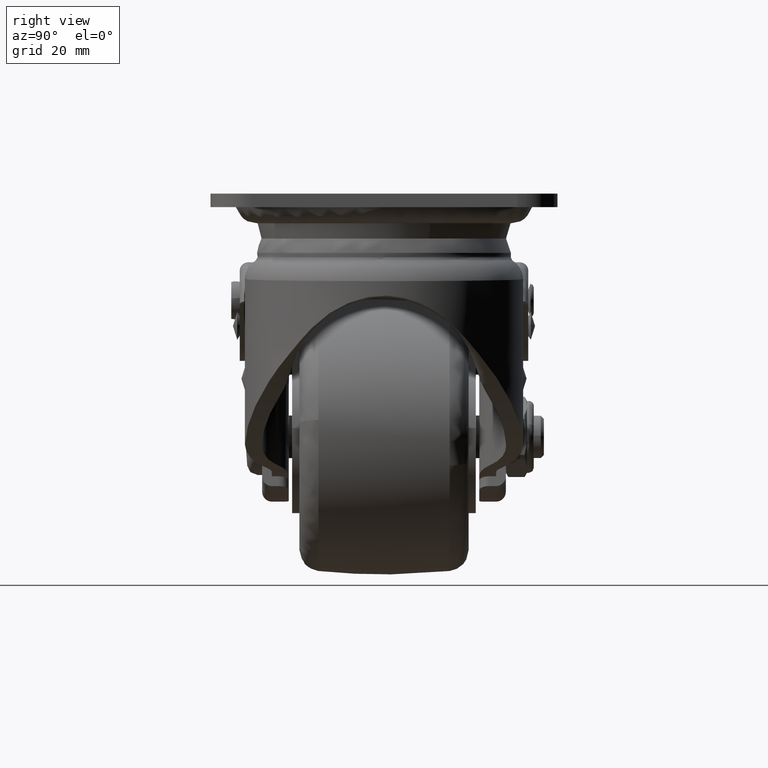
[diagram: clean part render]
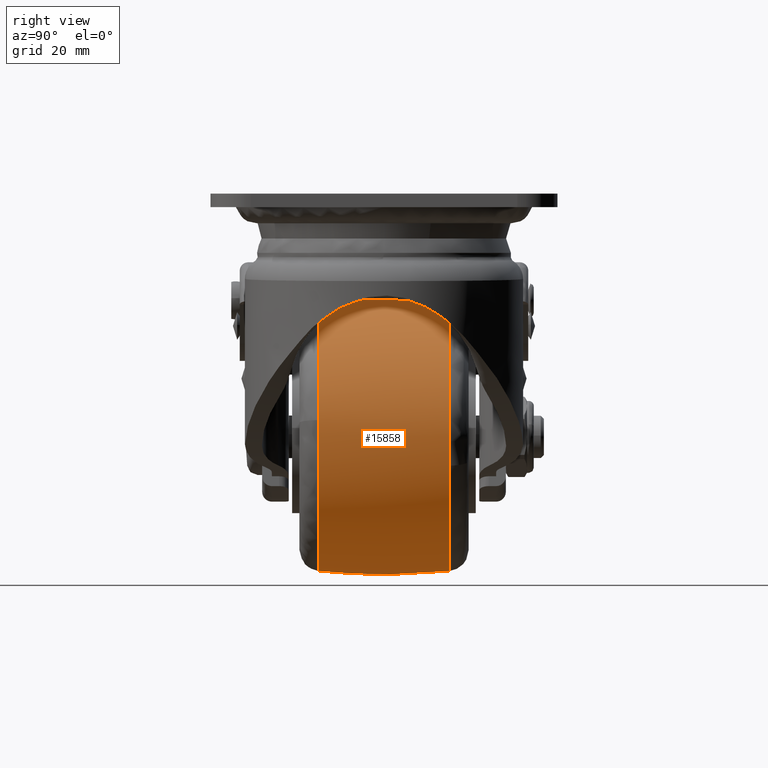
[diagram: same view with one face highlighted and labeled with its STEP entity id]
A machine part, right view. The second image highlights one B-rep face of the part: STEP entity #15858.
In plain terms, the highlighted face is a freeform B-spline surface patch.
Its self-contained STEP definition (entity closure, byte-faithful):
#15369=CARTESIAN_POINT('',(30.956984872587949,15.517244432105940,-64.300898144568194));
#15370=VERTEX_POINT('',#15369);
#15384=CARTESIAN_POINT('',(0.0,15.517246504561850,-89.195224658554821));
#15385=VERTEX_POINT('',#15384);
#15386=CARTESIAN_POINT('',(30.956984872587942,15.517244432105940,-64.300898144568194));
#15387=CARTESIAN_POINT('',(25.487985059781149,15.517246369822857,-89.195224380133894));
#15388=CARTESIAN_POINT('',(0.0,15.517246504561850,-89.195224658554821));
#15396=(BOUNDED_CURVE()B_SPLINE_CURVE(2,(#15386,#15387,#15388),.UNSPECIFIED.,.F.,.U.)B_SPLINE_CURVE_WITH_KNOTS((3,3),(0.286726881241594,0.500000000000000),.UNSPECIFIED.)CURVE()GEOMETRIC_REPRESENTATION_ITEM()RATIONAL_B_SPLINE_CURVE((0.926585902267039,0.750134999041867,1.0))REPRESENTATION_ITEM(''));
#15397=EDGE_CURVE('',#15370,#15385,#15396,.T.);
#15399=CARTESIAN_POINT('',(-31.483239876195750,15.517261947292409,-61.159613536615502));
#15400=VERTEX_POINT('',#15399);
#15414=CARTESIAN_POINT('',(-31.535192183460602,15.517259539980911,-54.319013286319269));
#15415=VERTEX_POINT('',#15414);
#15416=CARTESIAN_POINT('',(-31.483239876195750,15.517261947292416,-61.159613536615495));
#15417=CARTESIAN_POINT('',(-31.695222454983700,15.517261361219257,-59.335946286209172));
#15418=CARTESIAN_POINT('',(-31.695221846340811,15.517260711201500,-57.499999907075583));
#15419=CARTESIAN_POINT('',(-31.695221317734728,15.517260146661334,-55.905481248642118));
#15420=CARTESIAN_POINT('',(-31.535192183460602,15.517259539980916,-54.319013286319269));
#15428=(BOUNDED_CURVE()B_SPLINE_CURVE(2,(#15416,#15417,#15418,#15419,#15420),.UNSPECIFIED.,.F.,.U.)B_SPLINE_CURVE_WITH_KNOTS((3,2,3),(0.730000273836047,0.750000000000000,0.767423438940794),.UNSPECIFIED.)CURVE()GEOMETRIC_REPRESENTATION_ITEM()RATIONAL_B_SPLINE_CURVE((0.956886657167089,0.976568863313808,1.0,0.979587171543325,0.962019636448441))REPRESENTATION_ITEM(''));
#15429=EDGE_CURVE('',#15400,#15415,#15428,.T.);
#15524=CARTESIAN_POINT('',(0.0,15.517241913492301,-25.804774863944900));
#15525=VERTEX_POINT('',#15524);
#15526=CARTESIAN_POINT('',(-31.535192183460602,15.517259539980911,-54.319013286319269));
#15527=CARTESIAN_POINT('',(-28.658934756183783,15.517249848950010,-25.804774892733406));
#15528=CARTESIAN_POINT('',(0.0,15.517241913492301,-25.804774863944900));
#15536=(BOUNDED_CURVE()B_SPLINE_CURVE(2,(#15526,#15527,#15528),.UNSPECIFIED.,.F.,.U.)B_SPLINE_CURVE_WITH_KNOTS((3,3),(0.767423438940794,1.0),.UNSPECIFIED.)CURVE()GEOMETRIC_REPRESENTATION_ITEM()RATIONAL_B_SPLINE_CURVE((0.962019636448440,0.727519609643222,1.0))REPRESENTATION_ITEM(''));
#15537=EDGE_CURVE('',#15415,#15525,#15536,.T.);
#15539=CARTESIAN_POINT('',(0.0,15.517241913492301,-25.804774863944900));
#15540=CARTESIAN_POINT('',(31.695224116910239,15.517241805140783,-25.804774640050333));
#15541=CARTESIAN_POINT('',(31.695222849567049,15.517243965936570,-57.499999258934373));
#15542=CARTESIAN_POINT('',(31.695222711996930,15.517244200491000,-60.940516558995348));
#15543=CARTESIAN_POINT('',(30.956984872587942,15.517244432105940,-64.300898144568194));
#15551=(BOUNDED_CURVE()B_SPLINE_CURVE(2,(#15539,#15540,#15541,#15542,#15543),.UNSPECIFIED.,.F.,.U.)B_SPLINE_CURVE_WITH_KNOTS((3,2,3),(0.0,0.250000000000000,0.286726881241594),.UNSPECIFIED.)CURVE()GEOMETRIC_REPRESENTATION_ITEM()RATIONAL_B_SPLINE_CURVE((1.0,0.707106781186547,1.0,0.956971782144681,0.926585902267039))REPRESENTATION_ITEM(''));
#15552=EDGE_CURVE('',#15525,#15370,#15551,.T.);
#15593=CARTESIAN_POINT('',(11.223453774357321,-15.517241533323880,-87.141543519256601));
#15594=VERTEX_POINT('',#15593);
#15595=CARTESIAN_POINT('',(0.0,-15.517241598101750,-89.195221404938138));
#15596=VERTEX_POINT('',#15595);
#15597=CARTESIAN_POINT('',(11.223453774357321,-15.517241533323876,-87.141543519256601));
#15598=CARTESIAN_POINT('',(5.799618813265998,-15.517241598101759,-89.195221404938152));
#15599=CARTESIAN_POINT('',(0.0,-15.517241598101750,-89.195221404938138));
#15607=(BOUNDED_CURVE()B_SPLINE_CURVE(2,(#15597,#15598,#15599),.UNSPECIFIED.,.F.,.U.)B_SPLINE_CURVE_WITH_KNOTS((3,3),(0.439864364277846,0.500000000000000),.UNSPECIFIED.)CURVE()GEOMETRIC_REPRESENTATION_ITEM()RATIONAL_B_SPLINE_CURVE((0.892987462786412,0.929546720351780,1.0))REPRESENTATION_ITEM(''));
#15608=EDGE_CURVE('',#15594,#15596,#15607,.T.);
#15672=CARTESIAN_POINT('',(31.445293854822559,-15.517241488365061,-53.527535572264490));
#15673=VERTEX_POINT('',#15672);
#15687=CARTESIAN_POINT('',(0.0,-15.517241397116351,-25.804779828797962));
#15688=VERTEX_POINT('',#15687);
#15689=CARTESIAN_POINT('',(0.0,-15.517241397116351,-25.804779828797962));
#15690=CARTESIAN_POINT('',(27.943094916294701,-15.517241397116349,-25.804779828797955));
#15691=CARTESIAN_POINT('',(31.445293854822555,-15.517241488365064,-53.527535572264490));
#15699=(BOUNDED_CURVE()B_SPLINE_CURVE(2,(#15689,#15690,#15691),.UNSPECIFIED.,.F.,.U.)B_SPLINE_CURVE_WITH_KNOTS((3,3),(0.0,0.228321253634471),.UNSPECIFIED.)CURVE()GEOMETRIC_REPRESENTATION_ITEM()RATIONAL_B_SPLINE_CURVE((1.0,0.732505012397909,0.953608352077790))REPRESENTATION_ITEM(''));
#15700=EDGE_CURVE('',#15688,#15673,#15699,.T.);
#15702=CARTESIAN_POINT('',(-31.483237938265621,-15.517256669648710,-61.159613230009029));
#15703=VERTEX_POINT('',#15702);
#15704=CARTESIAN_POINT('',(-31.483237938265628,-15.517256669648713,-61.159613230009029));
#15705=CARTESIAN_POINT('',(-31.695221062251296,-15.517256275756123,-59.335946228994970));
#15706=CARTESIAN_POINT('',(-31.695221035761062,-15.517255833425290,-57.500000100496379));
#15707=CARTESIAN_POINT('',(-31.695220578441766,-15.517248197159114,-25.804779876135512));
#15708=CARTESIAN_POINT('',(0.0,-15.517241397116351,-25.804779828797962));
#15716=(BOUNDED_CURVE()B_SPLINE_CURVE(2,(#15704,#15705,#15706,#15707,#15708),.UNSPECIFIED.,.F.,.U.)B_SPLINE_CURVE_WITH_KNOTS((3,2,3),(0.730000274267257,0.750000000000000,1.0),.UNSPECIFIED.)CURVE()GEOMETRIC_REPRESENTATION_ITEM()RATIONAL_B_SPLINE_CURVE((0.956886658015817,0.976568863819002,1.0,0.707106781186548,1.0))REPRESENTATION_ITEM(''));
#15717=EDGE_CURVE('',#15703,#15688,#15716,.T.);
#15752=CARTESIAN_POINT('',(31.445293854822552,-15.517241488365062,-53.527535572264497));
#15753=CARTESIAN_POINT('',(31.695220171202056,-15.517241491286589,-55.505906078745952));
#15754=CARTESIAN_POINT('',(31.695220171202049,-15.517241497609049,-57.500000616868050));
#15755=CARTESIAN_POINT('',(31.695220171202056,-15.517241567013771,-79.390128023992688));
#15756=CARTESIAN_POINT('',(11.223453774357326,-15.517241533323885,-87.141543519256615));
#15764=(BOUNDED_CURVE()B_SPLINE_CURVE(2,(#15752,#15753,#15754,#15755,#15756),.UNSPECIFIED.,.F.,.U.)B_SPLINE_CURVE_WITH_KNOTS((3,2,3),(0.228321253634471,0.250000000000000,0.439864364277846),.UNSPECIFIED.)CURVE()GEOMETRIC_REPRESENTATION_ITEM()RATIONAL_B_SPLINE_CURVE((0.953608352077791,0.974601768788639,1.0,0.777560060834767,0.892987462786411))REPRESENTATION_ITEM(''));
#15765=EDGE_CURVE('',#15673,#15594,#15764,.T.);
#15787=CARTESIAN_POINT('',(-31.316080830594672,17.057838752804333,-61.140233557958126));
#15788=CARTESIAN_POINT('',(-33.255486134399156,0.000006253118764,-61.365673270787511));
#15789=CARTESIAN_POINT('',(-31.316082234113768,-17.057826408297270,-61.140233721105538));
#15790=CARTESIAN_POINT('',(-31.526944332504282,17.057838752804329,-59.326223999261714));
#15791=CARTESIAN_POINT('',(-33.479408415796364,0.000006253118765,-59.439322075910027));
#15792=CARTESIAN_POINT('',(-31.526945745473832,-17.057826408297274,-59.326224081109125));
#15793=CARTESIAN_POINT('',(-31.526944332504272,17.057838752804336,-57.500000000000007));
#15794=CARTESIAN_POINT('',(-33.479408415796350,0.000006253118766,-57.500000000000000));
#15795=CARTESIAN_POINT('',(-31.526945745473824,-17.057826408297274,-57.499999999999986));
#15796=CARTESIAN_POINT('',(-31.526944332504289,17.057838752804329,-25.973055667495718));
#15797=CARTESIAN_POINT('',(-33.479408415796357,0.000006253118766,-24.020591584203633));
#15798=CARTESIAN_POINT('',(-31.526945745473824,-17.057826408297281,-25.973054254526165));
#15799=CARTESIAN_POINT('',(0.0,17.057838752804336,-25.973055667495728));
#15800=CARTESIAN_POINT('',(0.0,0.000006253118766,-24.020591584203654));
#15801=CARTESIAN_POINT('',(0.0,-17.057826408297274,-25.973054254526183));
#15802=CARTESIAN_POINT('',(31.526944332504272,17.057838752804329,-25.973055667495707));
#15803=CARTESIAN_POINT('',(33.479408415796357,0.000006253118766,-24.020591584203633));
#15804=CARTESIAN_POINT('',(31.526945745473824,-17.057826408297281,-25.973054254526165));
#15805=CARTESIAN_POINT('',(31.526944332504272,17.057838752804336,-57.500000000000007));
#15806=CARTESIAN_POINT('',(33.479408415796350,0.000006253118766,-57.500000000000000));
#15807=CARTESIAN_POINT('',(31.526945745473824,-17.057826408297274,-57.499999999999986));
#15808=CARTESIAN_POINT('',(31.526944332504289,17.057838752804329,-89.026944332504272));
#15809=CARTESIAN_POINT('',(33.479408415796357,0.000006253118766,-90.979408415796343));
#15810=CARTESIAN_POINT('',(31.526945745473824,-17.057826408297281,-89.026945745473824));
#15811=CARTESIAN_POINT('',(0.0,17.057838752804336,-89.026944332504272));
#15812=CARTESIAN_POINT('',(0.0,0.000006253118766,-90.979408415796357));
#15813=CARTESIAN_POINT('',(0.0,-17.057826408297274,-89.026945745473824));
#15821=(BOUNDED_SURFACE()B_SPLINE_SURFACE(2,2,((#15787,#15790,#15793,#15796,#15799,#15802,#15805,#15808,#15811),(#15788,#15791,#15794,#15797,#15800,#15803,#15806,#15809,#15812),(#15789,#15792,#15795,#15798,#15801,#15804,#15807,#15810,#15813)),.UNSPECIFIED.,.F.,.F.,.U.)B_SPLINE_SURFACE_WITH_KNOTS((3,3),(3,2,2,2,3),(0.0,34.226679963559867),(0.0,4.307820149998674,58.155583258500862,112.003346367003100,165.851109475505210),.UNSPECIFIED.)GEOMETRIC_REPRESENTATION_ITEM()RATIONAL_B_SPLINE_SURFACE(((0.855999914603439,0.873607182817957,0.894568215573752,0.632555251466149,0.894568215573752,0.632555251466149,0.894568215573752,0.632555251466149,0.894568215573752),(0.850447012837298,0.867940062079246,0.888765119873100,0.628451843144344,0.888765119873100,0.628451843144344,0.888765119873100,0.628451843144344,0.888765119873100),(0.855999910558647,0.873607178689967,0.894568211346716,0.632555248477184,0.894568211346716,0.632555248477184,0.894568211346716,0.632555248477184,0.894568211346716)))REPRESENTATION_ITEM('')SURFACE());
#15822=ORIENTED_EDGE('',*,*,#15537,.F.);
#15823=ORIENTED_EDGE('',*,*,#15429,.F.);
#15824=CARTESIAN_POINT('',(-31.483239876195753,15.517261947292406,-61.159613536615502));
#15825=CARTESIAN_POINT('',(-33.086339032080382,0.000002665970412,-61.345960460324577));
#15826=CARTESIAN_POINT('',(-31.483237938265624,-15.517256669648710,-61.159613230009029));
#15834=(BOUNDED_CURVE()B_SPLINE_CURVE(2,(#15824,#15825,#15826),.UNSPECIFIED.,.F.,.U.)B_SPLINE_CURVE_WITH_KNOTS((3,3),(0.425603817134385,0.574396158670454),.UNSPECIFIED.)CURVE()GEOMETRIC_REPRESENTATION_ITEM()RATIONAL_B_SPLINE_CURVE((0.855518460504172,0.850928451015554,0.855518459011407))REPRESENTATION_ITEM(''));
#15835=EDGE_CURVE('',#15400,#15703,#15834,.T.);
#15836=ORIENTED_EDGE('',*,*,#15835,.T.);
#15837=ORIENTED_EDGE('',*,*,#15717,.T.);
#15838=ORIENTED_EDGE('',*,*,#15700,.T.);
#15839=ORIENTED_EDGE('',*,*,#15765,.T.);
#15840=ORIENTED_EDGE('',*,*,#15608,.T.);
#15841=CARTESIAN_POINT('',(0.0,15.517246504561852,-89.195224658554821));
#15842=CARTESIAN_POINT('',(0.0,0.000002477672730,-90.809114288185242));
#15843=CARTESIAN_POINT('',(0.0,-15.517241598101757,-89.195221404938138));
#15851=(BOUNDED_CURVE()B_SPLINE_CURVE(2,(#15841,#15842,#15843),.UNSPECIFIED.,.F.,.U.)B_SPLINE_CURVE_WITH_KNOTS((3,3),(0.425603891572650,0.574396086643665),.UNSPECIFIED.)CURVE()GEOMETRIC_REPRESENTATION_ITEM()RATIONAL_B_SPLINE_CURVE((0.894065071744625,0.889268262290978,0.894065070340086))REPRESENTATION_ITEM(''));
#15852=EDGE_CURVE('',#15385,#15596,#15851,.T.);
#15853=ORIENTED_EDGE('',*,*,#15852,.F.);
#15854=ORIENTED_EDGE('',*,*,#15397,.F.);
#15855=ORIENTED_EDGE('',*,*,#15552,.F.);
#15856=EDGE_LOOP('',(#15822,#15823,#15836,#15837,#15838,#15839,#15840,#15853,#15854,#15855));
#15857=FACE_OUTER_BOUND('',#15856,.T.);
#15858=ADVANCED_FACE('',(#15857),#15821,.T.);